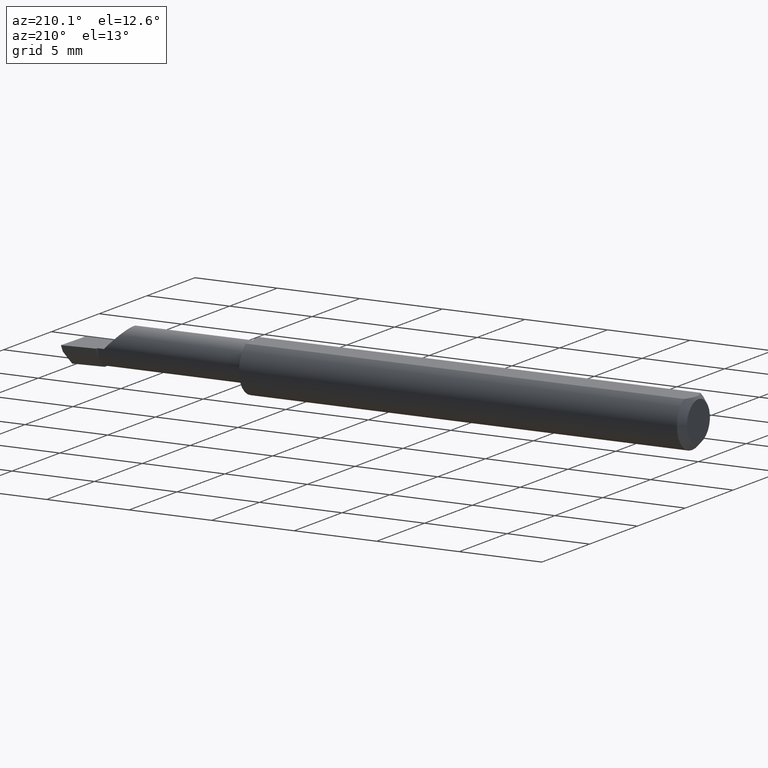
[diagram: clean part render]
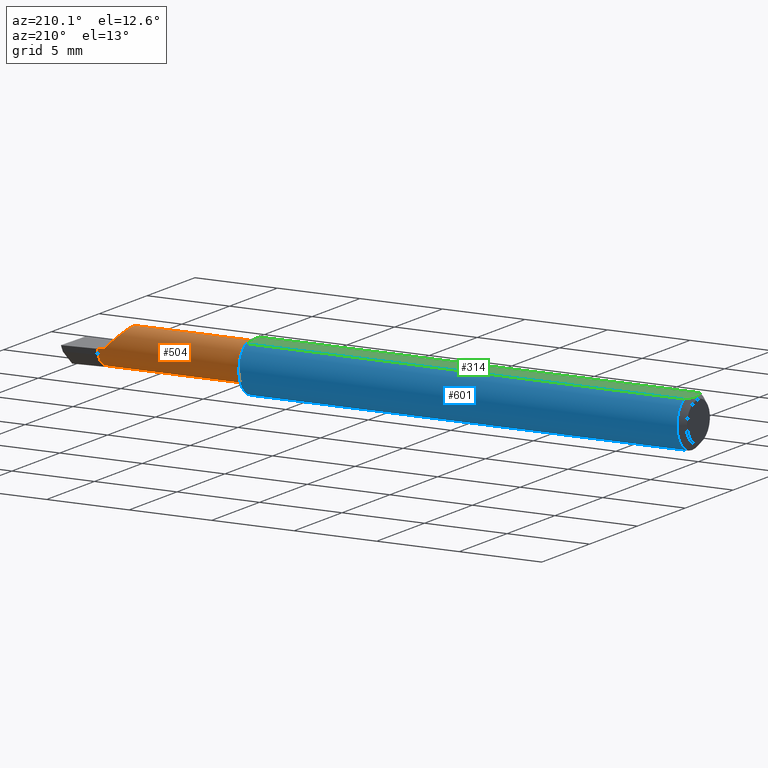
[diagram: same view with three faces highlighted in distinct colors, each labeled with its STEP entity id]
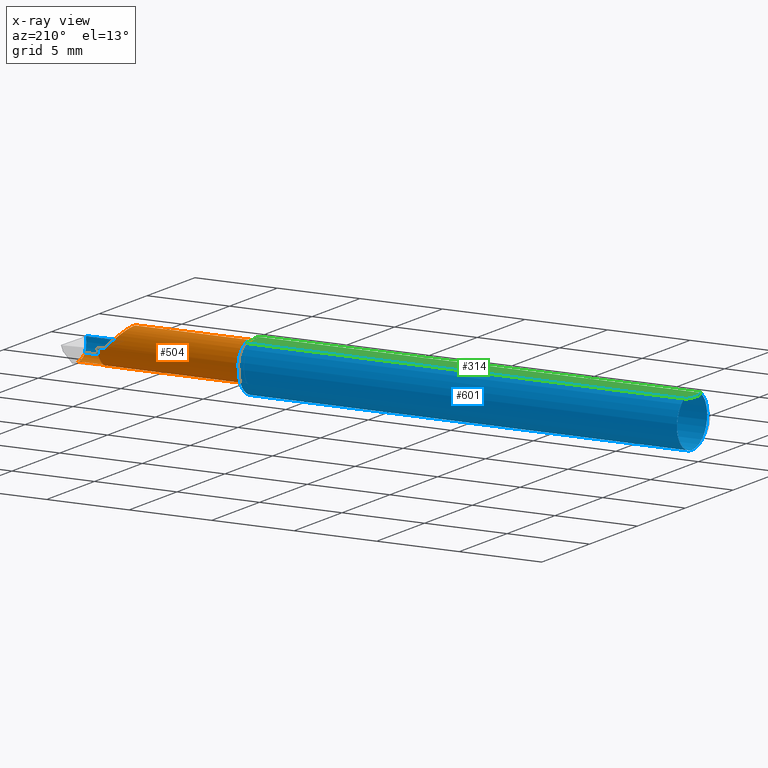
[diagram: x-ray of the same camera — body ghosted, the three highlighted faces saturated]
A machine part, auxiliary view with three faces highlighted in distinct colors.
The next image is the same camera in x-ray (body ghosted, the three faces saturated) — at least one of them is partly hidden behind the body in this view.
Their STEP definitions:

[orange] entity #504 — the highlighted cylindrical surface (edge-blend (fillet) strip) has radius 1.1443 mm, axis along (-1, -0, -0).
#4 = CARTESIAN_POINT ( 'NONE',  ( 1.492946566646605078, -0.02239999999999999630, -0.04504999999999998589 ) ) ;
#9 = ORIENTED_EDGE ( 'NONE', *, *, #261, .F. ) ;
#11 = VERTEX_POINT ( 'NONE', #4 ) ;
#13 =( BOUNDED_CURVE ( )  B_SPLINE_CURVE ( 3, ( #307, #83, #355, #220 ),
 .UNSPECIFIED., .F., .T. ) 
 B_SPLINE_CURVE_WITH_KNOTS ( ( 4, 4 ),
 ( 5.756326750816668003, 6.493234751459600496 ),
 .UNSPECIFIED. ) 
 CURVE ( )  GEOMETRIC_REPRESENTATION_ITEM ( )  RATIONAL_B_SPLINE_CURVE ( ( 1.000000000000000000, 0.9552568590268901705, 0.9552568590268901705, 1.000000000000000000 ) ) 
 REPRESENTATION_ITEM ( '' )  );
#15 = DIRECTION ( 'NONE',  ( -1.000000000000000000, -5.691349986800549142E-18, -0.0000000000000000000 ) ) ;
#17 = DIRECTION ( 'NONE',  ( 0.0000000000000000000, -1.000000000000000000, 0.0000000000000000000 ) ) ;
#24 = CARTESIAN_POINT ( 'NONE',  ( 1.420000000000000151, -0.02239999999999999630, 0.0000000000000000000 ) ) ;
#26 = CARTESIAN_POINT ( 'NONE',  ( 1.085000000000000187, -0.02239999999999999977, 0.0000000000000000000 ) ) ;
#39 = CARTESIAN_POINT ( 'NONE',  ( 1.420000000000000151, 0.02265000000000000346, 1.836970198721031660E-16 ) ) ;
#83 = CARTESIAN_POINT ( 'NONE',  ( 1.492874371667014088, -0.04428776192107811843, -0.04097143695815294584 ) ) ;
#96 = DIRECTION ( 'NONE',  ( -1.000000000000000000, -5.691349986800549142E-18, -0.0000000000000000000 ) ) ;
#104 = AXIS2_PLACEMENT_3D ( 'NONE', #512, #96, #279 ) ;
#108 = EDGE_CURVE ( 'NONE', #353, #258, #127, .T. ) ;
#116 = CARTESIAN_POINT ( 'NONE',  ( 1.420000000000000151, -0.02239999999999999630, -0.04504999999999998589 ) ) ;
#117 = CARTESIAN_POINT ( 'NONE',  ( 1.500000000000000222, -0.02239999999999999630, -0.04504999999999998589 ) ) ;
#126 = CARTESIAN_POINT ( 'NONE',  ( 1.405000000000000249, 0.02264999999999992714, 1.163414459189985436E-17 ) ) ;
#127 =( BOUNDED_CURVE ( )  B_SPLINE_CURVE ( 3, ( #563, #283, #147, #323 ),
 .UNSPECIFIED., .F., .T. ) 
 B_SPLINE_CURVE_WITH_KNOTS ( ( 4, 4 ),
 ( 5.546277306536651963, 7.853981633974482790 ),
 .UNSPECIFIED. ) 
 CURVE ( )  GEOMETRIC_REPRESENTATION_ITEM ( )  RATIONAL_B_SPLINE_CURVE ( ( 1.000000000000000000, 0.6033122017619988453, 0.6033122017619988453, 1.000000000000000000 ) ) 
 REPRESENTATION_ITEM ( '' )  );
#132 = VECTOR ( 'NONE', #166, 39.37007874015748143 ) ;
#147 = CARTESIAN_POINT ( 'NONE',  ( 1.359483931624303699, 0.02264999999999997571, 0.04551606837569584230 ) ) ;
#151 = EDGE_CURVE ( 'NONE', #11, #234, #221, .T. ) ;
#165 = DIRECTION ( 'NONE',  ( 0.0000000000000000000, -1.000000000000000000, 0.0000000000000000000 ) ) ;
#166 = DIRECTION ( 'NONE',  ( 1.000000000000000000, 5.691349986800549142E-18, 0.0000000000000000000 ) ) ;
#172 = ORIENTED_EDGE ( 'NONE', *, *, #299, .T. ) ;
#182 = CARTESIAN_POINT ( 'NONE',  ( 1.085000000000000187, -0.05267366071428583596, 0.03336177403790603624 ) ) ;
#203 = CIRCLE ( 'NONE', #456, 0.04504999999999995813 ) ;
#207 = AXIS2_PLACEMENT_3D ( 'NONE', #298, #253, #587 ) ;
#210 = ORIENTED_EDGE ( 'NONE', *, *, #242, .F. ) ;
#215 = LINE ( 'NONE', #597, #359 ) ;
#220 = CARTESIAN_POINT ( 'NONE',  ( 1.492946566646605078, -0.02239999999999999630, -0.04504999999999998589 ) ) ;
#221 = LINE ( 'NONE', #117, #410 ) ;
#225 = CYLINDRICAL_SURFACE ( 'NONE', #104, 0.04504999999999997201 ) ;
#227 = EDGE_CURVE ( 'NONE', #455, #234, #420, .T. ) ;
#229 = DIRECTION ( 'NONE',  ( 1.000000000000000000, 5.691349986800549142E-18, 0.0000000000000000000 ) ) ;
#234 = VERTEX_POINT ( 'NONE', #116 ) ;
#238 = EDGE_CURVE ( 'NONE', #437, #367, #366, .T. ) ;
#240 = ORIENTED_EDGE ( 'NONE', *, *, #306, .T. ) ;
#242 = EDGE_CURVE ( 'NONE', #455, #551, #572, .T. ) ;
#245 = CARTESIAN_POINT ( 'NONE',  ( 1.252500000000000169, -0.05267366071428577351, -0.03336177403790612644 ) ) ;
#249 = ORIENTED_EDGE ( 'NONE', *, *, #459, .T. ) ;
#253 = DIRECTION ( 'NONE',  ( 1.000000000000000000, 5.691349986800549142E-18, 0.0000000000000000000 ) ) ;
#254 = AXIS2_PLACEMENT_3D ( 'NONE', #24, #262, #165 ) ;
#258 = VERTEX_POINT ( 'NONE', #126 ) ;
#261 = EDGE_CURVE ( 'NONE', #462, #367, #203, .T. ) ;
#262 = DIRECTION ( 'NONE',  ( -1.000000000000000000, -5.691349986800549142E-18, -0.0000000000000000000 ) ) ;
#278 = ORIENTED_EDGE ( 'NONE', *, *, #108, .T. ) ;
#279 = DIRECTION ( 'NONE',  ( 5.691349986800549913E-18, -1.000000000000000000, 0.0000000000000000000 ) ) ;
#283 = CARTESIAN_POINT ( 'NONE',  ( 1.341051366671215384, -0.01896673977657555368, 0.06394863332878404638 ) ) ;
#298 = CARTESIAN_POINT ( 'NONE',  ( 1.420000000000000151, -0.02239999999999999630, 0.0000000000000000000 ) ) ;
#299 = EDGE_CURVE ( 'NONE', #511, #551, #319, .T. ) ;
#306 = EDGE_CURVE ( 'NONE', #258, #511, #446, .T. ) ;
#307 = CARTESIAN_POINT ( 'NONE',  ( 1.493589448587071988, -0.05267366071428577351, -0.03336177403790612644 ) ) ;
#319 = CIRCLE ( 'NONE', #254, 0.04504999999999999283 ) ;
#323 = CARTESIAN_POINT ( 'NONE',  ( 1.405000000000000249, 0.02264999999999992714, 1.163414459189985436E-17 ) ) ;
#334 = ORIENTED_EDGE ( 'NONE', *, *, #227, .T. ) ;
#344 = CARTESIAN_POINT ( 'NONE',  ( 1.371638225962093838, -0.05267366071428578739, 0.03336177403790611951 ) ) ;
#353 = VERTEX_POINT ( 'NONE', #344 ) ;
#354 = ORIENTED_EDGE ( 'NONE', *, *, #238, .T. ) ;
#355 = CARTESIAN_POINT ( 'NONE',  ( 1.492650040401417133, -0.03372388044486963193, -0.04504999999999997201 ) ) ;
#359 = VECTOR ( 'NONE', #229, 39.37007874015748143 ) ;
#361 = CARTESIAN_POINT ( 'NONE',  ( 1.420000000000000151, 0.01811171944543692874, -0.01970540757188761136 ) ) ;
#366 = LINE ( 'NONE', #245, #429 ) ;
#367 = VERTEX_POINT ( 'NONE', #397 ) ;
#389 = DIRECTION ( 'NONE',  ( -1.000000000000000000, -5.691349986800549142E-18, -0.0000000000000000000 ) ) ;
#392 = CARTESIAN_POINT ( 'NONE',  ( -2.563953169053420290E-19, 0.02264999999999996183, 1.836970198721030427E-16 ) ) ;
#396 = EDGE_CURVE ( 'NONE', #437, #11, #13, .T. ) ;
#397 = CARTESIAN_POINT ( 'NONE',  ( 1.085000000000000187, -0.05267366071428582208, -0.03336177403790606399 ) ) ;
#410 = VECTOR ( 'NONE', #525, 39.37007874015748143 ) ;
#413 = ORIENTED_EDGE ( 'NONE', *, *, #396, .F. ) ;
#420 = CIRCLE ( 'NONE', #428, 0.04504999999999999283 ) ;
#427 = FACE_OUTER_BOUND ( 'NONE', #447, .T. ) ;
#428 = AXIS2_PLACEMENT_3D ( 'NONE', #534, #577, #17 ) ;
#429 = VECTOR ( 'NONE', #15, 39.37007874015748143 ) ;
#437 = VERTEX_POINT ( 'NONE', #552 ) ;
#441 = DIRECTION ( 'NONE',  ( 0.0000000000000000000, -1.000000000000000000, 0.0000000000000000000 ) ) ;
#443 = ORIENTED_EDGE ( 'NONE', *, *, #151, .F. ) ;
#446 = LINE ( 'NONE', #392, #132 ) ;
#447 = EDGE_LOOP ( 'NONE', ( #413, #354, #9, #249, #278, #240, #172, #210, #334, #443 ) ) ;
#455 = VERTEX_POINT ( 'NONE', #554 ) ;
#456 = AXIS2_PLACEMENT_3D ( 'NONE', #26, #389, #441 ) ;
#459 = EDGE_CURVE ( 'NONE', #462, #353, #215, .T. ) ;
#462 = VERTEX_POINT ( 'NONE', #182 ) ;
#504 = ADVANCED_FACE ( 'NONE', ( #427 ), #225, .T. ) ;
#511 = VERTEX_POINT ( 'NONE', #39 ) ;
#512 = CARTESIAN_POINT ( 'NONE',  ( 0.0000000000000000000, -0.02240000000000000324, 0.0000000000000000000 ) ) ;
#525 = DIRECTION ( 'NONE',  ( -1.000000000000000000, 5.691349986800548372E-18, -0.0000000000000000000 ) ) ;
#534 = CARTESIAN_POINT ( 'NONE',  ( 1.420000000000000151, -0.02239999999999999630, 0.0000000000000000000 ) ) ;
#551 = VERTEX_POINT ( 'NONE', #361 ) ;
#552 = CARTESIAN_POINT ( 'NONE',  ( 1.493589448587071988, -0.05267366071428577351, -0.03336177403790612644 ) ) ;
#554 = CARTESIAN_POINT ( 'NONE',  ( 1.420000000000000151, -0.001476535193823069530, -0.03989625446711349277 ) ) ;
#563 = CARTESIAN_POINT ( 'NONE',  ( 1.371638225962093838, -0.05267366071428578739, 0.03336177403790611951 ) ) ;
#572 = CIRCLE ( 'NONE', #207, 0.04504999999999997201 ) ;
#577 = DIRECTION ( 'NONE',  ( -1.000000000000000000, -5.691349986800549142E-18, -0.0000000000000000000 ) ) ;
#587 = DIRECTION ( 'NONE',  ( 0.0000000000000000000, -1.000000000000000000, 1.776356839400250465E-15 ) ) ;
#597 = CARTESIAN_POINT ( 'NONE',  ( 1.252500000000000169, -0.05267366071428577351, 0.03336177403790612644 ) ) ;

[blue] entity #601 — the highlighted cylindrical surface (edge-blend (fillet) strip) has radius 1.5837 mm, axis along (-1, -0, -0).
#3 = CARTESIAN_POINT ( 'NONE',  ( 1.060000000000000275, 0.01155624999999986177, -0.06126969549408177451 ) ) ;
#6 = CARTESIAN_POINT ( 'NONE',  ( 1.083240954672475720, -0.05267366071428582208, -0.03336177403790606399 ) ) ;
#14 = ORIENTED_EDGE ( 'NONE', *, *, #493, .F. ) ;
#15 = DIRECTION ( 'NONE',  ( -1.000000000000000000, -5.691349986800549142E-18, -0.0000000000000000000 ) ) ;
#23 = CARTESIAN_POINT ( 'NONE',  ( 1.060000000000000275, 0.0000000000000000000, 0.0000000000000000000 ) ) ;
#25 = EDGE_CURVE ( 'NONE', #367, #113, #505, .T. ) ;
#27 = VECTOR ( 'NONE', #481, 39.37007874015748143 ) ;
#34 = B_SPLINE_CURVE_WITH_KNOTS ( 'NONE', 3,
 ( #529, #162, #475, #378, #533, #107, #528, #62, #425, #373 ),
 .UNSPECIFIED., .F., .F.,
 ( 4, 2, 2, 2, 4 ),
 ( 3.797231421916798275E-07, 0.0004333373953855909145, 0.0006498162315072879497, 0.0007580556495681328895, 0.0008662950676289779377 ),
 .UNSPECIFIED. ) ;
#37 = DIRECTION ( 'NONE',  ( -1.000000000000000000, -0.0000000000000000000, -0.0000000000000000000 ) ) ;
#41 = CARTESIAN_POINT ( 'NONE',  ( 1.497433779686218935, -0.06235000000000005121, 3.231995301756471648E-19 ) ) ;
#45 = VERTEX_POINT ( 'NONE', #55 ) ;
#55 = CARTESIAN_POINT ( 'NONE',  ( 0.01500000000000000465, 0.0000000000000000000, -0.06235000000000000264 ) ) ;
#56 = CARTESIAN_POINT ( 'NONE',  ( 1.072612635401776870, -0.04600867268841651869, -0.04219264322731248323 ) ) ;
#62 = CARTESIAN_POINT ( 'NONE',  ( 1.082134555967766865, -0.05240678568573016449, 0.03378794548805856557 ) ) ;
#69 = CARTESIAN_POINT ( 'NONE',  ( 2.249639673992788601E-32, -0.06234999999999999570, 1.836970198721030427E-16 ) ) ;
#79 = ORIENTED_EDGE ( 'NONE', *, *, #398, .T. ) ;
#80 = AXIS2_PLACEMENT_3D ( 'NONE', #23, #197, #430 ) ;
#87 = DIRECTION ( 'NONE',  ( 0.0000000000000000000, 0.0000000000000000000, 1.000000000000000000 ) ) ;
#88 = CIRCLE ( 'NONE', #383, 0.06235000000000000264 ) ;
#106 = CARTESIAN_POINT ( 'NONE',  ( 1.068132745576696019, -0.03943215935316551901, -0.04868886658133501216 ) ) ;
#107 = CARTESIAN_POINT ( 'NONE',  ( 1.078587721903973895, -0.05102224570557683386, 0.03585204334870999848 ) ) ;
#111 = LINE ( 'NONE', #293, #352 ) ;
#113 = VERTEX_POINT ( 'NONE', #3 ) ;
#144 = ORIENTED_EDGE ( 'NONE', *, *, #496, .F. ) ;
#154 = CARTESIAN_POINT ( 'NONE',  ( 1.405000000000000249, -0.06235000000000005121, 1.163414459189985436E-17 ) ) ;
#161 = ORIENTED_EDGE ( 'NONE', *, *, #25, .F. ) ;
#162 = CARTESIAN_POINT ( 'NONE',  ( 1.067873522747514015, -0.03849383661596392919, 0.04935695859860204232 ) ) ;
#169 = VECTOR ( 'NONE', #308, 39.37007874015748143 ) ;
#177 = EDGE_CURVE ( 'NONE', #437, #477, #390, .T. ) ;
#182 = CARTESIAN_POINT ( 'NONE',  ( 1.085000000000000187, -0.05267366071428583596, 0.03336177403790603624 ) ) ;
#189 = CARTESIAN_POINT ( 'NONE',  ( 1.059999999999996056, 0.004792881695547039807, -0.06254535345742004426 ) ) ;
#197 = DIRECTION ( 'NONE',  ( 1.000000000000000000, 5.691349986800549142E-18, 0.0000000000000000000 ) ) ;
#198 = CARTESIAN_POINT ( 'NONE',  ( 1.081592203943254615, -0.05228879390856558396, -0.03397671269166894353 ) ) ;
#199 = EDGE_CURVE ( 'NONE', #386, #462, #34, .T. ) ;
#202 = FACE_OUTER_BOUND ( 'NONE', #565, .T. ) ;
#206 = CARTESIAN_POINT ( 'NONE',  ( 1.393107270290912858, -0.06235000000000000264, 0.01189272970908752079 ) ) ;
#211 = VERTEX_POINT ( 'NONE', #578 ) ;
#212 = EDGE_CURVE ( 'NONE', #211, #353, #435, .T. ) ;
#213 = EDGE_CURVE ( 'NONE', #113, #311, #315, .T. ) ;
#215 = LINE ( 'NONE', #597, #359 ) ;
#222 = ORIENTED_EDGE ( 'NONE', *, *, #213, .F. ) ;
#229 = DIRECTION ( 'NONE',  ( 1.000000000000000000, 5.691349986800549142E-18, 0.0000000000000000000 ) ) ;
#235 = DIRECTION ( 'NONE',  ( -1.000000000000000000, -0.0000000000000000000, -0.0000000000000000000 ) ) ;
#238 = EDGE_CURVE ( 'NONE', #437, #367, #366, .T. ) ;
#241 = CARTESIAN_POINT ( 'NONE',  ( 1.494656860756163885, -0.05903713403021957490, -0.02331472336167223977 ) ) ;
#245 = CARTESIAN_POINT ( 'NONE',  ( 1.252500000000000169, -0.05267366071428577351, -0.03336177403790612644 ) ) ;
#246 = EDGE_CURVE ( 'NONE', #386, #438, #111, .T. ) ;
#251 = DIRECTION ( 'NONE',  ( -1.000000000000000000, -0.0000000000000000000, -0.0000000000000000000 ) ) ;
#274 = CIRCLE ( 'NONE', #320, 0.06235000000000000264 ) ;
#293 = CARTESIAN_POINT ( 'NONE',  ( 0.0000000000000000000, -0.03386738844375222768, 0.05234999999999997988 ) ) ;
#294 = CARTESIAN_POINT ( 'NONE',  ( 1.060000000000000275, 0.03386738844375224156, 0.05235000000000000070 ) ) ;
#308 = DIRECTION ( 'NONE',  ( 1.000000000000000000, 0.0000000000000000000, 0.0000000000000000000 ) ) ;
#310 = ORIENTED_EDGE ( 'NONE', *, *, #238, .F. ) ;
#311 = VERTEX_POINT ( 'NONE', #294 ) ;
#313 = CARTESIAN_POINT ( 'NONE',  ( 0.01500000000000000465, 0.0000000000000000000, 0.0000000000000000000 ) ) ;
#315 = CIRCLE ( 'NONE', #80, 0.06235000000000000264 ) ;
#320 = AXIS2_PLACEMENT_3D ( 'NONE', #358, #507, #364 ) ;
#326 = CARTESIAN_POINT ( 'NONE',  ( 1.078775713346482146, -0.05116520334387903574, -0.03564627526859109191 ) ) ;
#335 = CARTESIAN_POINT ( 'NONE',  ( 1.493589448587071988, -0.05267366071428577351, -0.03336177403790612644 ) ) ;
#336 = CARTESIAN_POINT ( 'NONE',  ( 1.497433779686218935, -0.06235000000000005121, 3.231995301756471648E-19 ) ) ;
#337 = EDGE_CURVE ( 'NONE', #477, #211, #472, .T. ) ;
#344 = CARTESIAN_POINT ( 'NONE',  ( 1.371638225962093838, -0.05267366071428578739, 0.03336177403790611951 ) ) ;
#350 = LINE ( 'NONE', #595, #169 ) ;
#351 = CARTESIAN_POINT ( 'NONE',  ( 1.066182189689074633, -0.03386738844375222074, 0.05235000000000000070 ) ) ;
#352 = VECTOR ( 'NONE', #251, 39.37007874015748143 ) ;
#353 = VERTEX_POINT ( 'NONE', #344 ) ;
#358 = CARTESIAN_POINT ( 'NONE',  ( 0.01500000000000000465, 0.0000000000000000000, 0.0000000000000000000 ) ) ;
#359 = VECTOR ( 'NONE', #229, 39.37007874015748143 ) ;
#362 = VERTEX_POINT ( 'NONE', #395 ) ;
#364 = DIRECTION ( 'NONE',  ( 0.0000000000000000000, 0.0000000000000000000, 1.000000000000000000 ) ) ;
#366 = LINE ( 'NONE', #245, #429 ) ;
#367 = VERTEX_POINT ( 'NONE', #397 ) ;
#373 = CARTESIAN_POINT ( 'NONE',  ( 1.085000000000000187, -0.05267366071428583596, 0.03336177403790603624 ) ) ;
#374 = CARTESIAN_POINT ( 'NONE',  ( 1.077568494155622725, -0.05043275970182654888, -0.03668598949093540562 ) ) ;
#377 = CARTESIAN_POINT ( 'NONE',  ( 1.371638225962093838, -0.05267366071428578739, 0.03336177403790611951 ) ) ;
#378 = CARTESIAN_POINT ( 'NONE',  ( 1.074073837407041987, -0.04761084945882111674, 0.04033650601908232020 ) ) ;
#383 = AXIS2_PLACEMENT_3D ( 'NONE', #313, #37, #87 ) ;
#386 = VERTEX_POINT ( 'NONE', #351 ) ;
#390 =( BOUNDED_CURVE ( )  B_SPLINE_CURVE ( 3, ( #335, #241, #574, #336 ),
 .UNSPECIFIED., .F., .F. ) 
 B_SPLINE_CURVE_WITH_KNOTS ( ( 4, 4 ),
 ( 0.7961532496683315641, 1.360746882514881850 ),
 .UNSPECIFIED. ) 
 CURVE ( )  GEOMETRIC_REPRESENTATION_ITEM ( )  RATIONAL_B_SPLINE_CURVE ( ( 1.000000000000000000, 0.9736121104788257874, 0.9736121104788257874, 1.000000000000000000 ) ) 
 REPRESENTATION_ITEM ( '' )  );
#395 = CARTESIAN_POINT ( 'NONE',  ( 0.01500000000000000465, 0.03386738844375223462, 0.05234999999999997988 ) ) ;
#397 = CARTESIAN_POINT ( 'NONE',  ( 1.085000000000000187, -0.05267366071428582208, -0.03336177403790606399 ) ) ;
#398 = EDGE_CURVE ( 'NONE', #362, #311, #350, .T. ) ;
#407 = CARTESIAN_POINT ( 'NONE',  ( 0.01500000000000185039, -0.03386738844380016850, 0.05235000000000000070 ) ) ;
#417 = CARTESIAN_POINT ( 'NONE',  ( 1.060000000000000275, 0.01155624999999986177, -0.06126969549408177451 ) ) ;
#423 = CARTESIAN_POINT ( 'NONE',  ( 1.065988988117221536, -0.03406974560157229048, -0.05264335079965579145 ) ) ;
#425 = CARTESIAN_POINT ( 'NONE',  ( 1.083537604150741629, -0.05267366071513952114, 0.03336177403655851692 ) ) ;
#429 = VECTOR ( 'NONE', #15, 39.37007874015748143 ) ;
#430 = DIRECTION ( 'NONE',  ( 0.0000000000000000000, 1.000000000000000000, 0.0000000000000000000 ) ) ;
#435 =( BOUNDED_CURVE ( )  B_SPLINE_CURVE ( 3, ( #154, #206, #579, #377 ),
 .UNSPECIFIED., .F., .T. ) 
 B_SPLINE_CURVE_WITH_KNOTS ( ( 4, 4 ),
 ( 4.712388980384689674, 5.276982613231239405 ),
 .UNSPECIFIED. ) 
 CURVE ( )  GEOMETRIC_REPRESENTATION_ITEM ( )  RATIONAL_B_SPLINE_CURVE ( ( 1.000000000000000000, 0.9736121104788257874, 0.9736121104788257874, 1.000000000000000000 ) ) 
 REPRESENTATION_ITEM ( '' )  );
#437 = VERTEX_POINT ( 'NONE', #552 ) ;
#438 = VERTEX_POINT ( 'NONE', #407 ) ;
#458 = CARTESIAN_POINT ( 'NONE',  ( 1.061648092746324767, -0.01564147840104310530, -0.06074236086770339743 ) ) ;
#459 = EDGE_CURVE ( 'NONE', #462, #353, #215, .T. ) ;
#462 = VERTEX_POINT ( 'NONE', #182 ) ;
#463 = CARTESIAN_POINT ( 'NONE',  ( 1.060276440363477235, -0.002103274276245940214, -0.06268864719924564788 ) ) ;
#467 = CARTESIAN_POINT ( 'NONE',  ( 0.0000000000000000000, 0.0000000000000000000, 0.0000000000000000000 ) ) ;
#469 = CARTESIAN_POINT ( 'NONE',  ( 1.062728993423048385, -0.02215482600002538494, -0.05866202889160988809 ) ) ;
#472 = LINE ( 'NONE', #69, #27 ) ;
#473 = CARTESIAN_POINT ( 'NONE',  ( 1.074327038483182450, -0.04799382633214958893, -0.03989142061000427314 ) ) ;
#475 = CARTESIAN_POINT ( 'NONE',  ( 1.069899083742320345, -0.04251446938472881742, 0.04588310374207918430 ) ) ;
#477 = VERTEX_POINT ( 'NONE', #41 ) ;
#481 = DIRECTION ( 'NONE',  ( -1.000000000000000000, -0.0000000000000000000, -0.0000000000000000000 ) ) ;
#482 = CYLINDRICAL_SURFACE ( 'NONE', #573, 0.06235000000000000264 ) ;
#493 = EDGE_CURVE ( 'NONE', #45, #438, #274, .T. ) ;
#496 = EDGE_CURVE ( 'NONE', #362, #45, #88, .T. ) ;
#502 = ORIENTED_EDGE ( 'NONE', *, *, #212, .T. ) ;
#505 = B_SPLINE_CURVE_WITH_KNOTS ( 'NONE', 3,
 ( #519, #6, #198, #326, #374, #473, #56, #106, #423, #469, #458, #463, #189, #417 ),
 .UNSPECIFIED., .F., .F.,
 ( 4, 2, 2, 2, 2, 2, 4 ),
 ( 1.960001601931791046E-07, 0.0001315703184465652758, 0.0002629446367329374076, 0.0005256932733056817256, 0.001051190546451170795, 0.001576687819596659648, 0.002102185092742148934 ),
 .UNSPECIFIED. ) ;
#507 = DIRECTION ( 'NONE',  ( -1.000000000000000000, -0.0000000000000000000, -0.0000000000000000000 ) ) ;
#519 = CARTESIAN_POINT ( 'NONE',  ( 1.085000000000000187, -0.05267366071428582208, -0.03336177403790606399 ) ) ;
#522 = ORIENTED_EDGE ( 'NONE', *, *, #337, .T. ) ;
#524 = ORIENTED_EDGE ( 'NONE', *, *, #199, .F. ) ;
#528 = CARTESIAN_POINT ( 'NONE',  ( 1.079654899318486461, -0.05157034440792586383, 0.03505133412385297992 ) ) ;
#529 = CARTESIAN_POINT ( 'NONE',  ( 1.066182189689074633, -0.03386738844375222074, 0.05235000000000000070 ) ) ;
#533 = CARTESIAN_POINT ( 'NONE',  ( 1.075661082963681459, -0.04915643512136035759, 0.03841395140597855112 ) ) ;
#539 = ORIENTED_EDGE ( 'NONE', *, *, #177, .T. ) ;
#540 = ORIENTED_EDGE ( 'NONE', *, *, #459, .F. ) ;
#552 = CARTESIAN_POINT ( 'NONE',  ( 1.493589448587071988, -0.05267366071428577351, -0.03336177403790612644 ) ) ;
#562 = DIRECTION ( 'NONE',  ( 0.0000000000000000000, 0.0000000000000000000, 1.000000000000000000 ) ) ;
#565 = EDGE_LOOP ( 'NONE', ( #310, #539, #522, #502, #540, #524, #594, #14, #144, #79, #222, #161 ) ) ;
#573 = AXIS2_PLACEMENT_3D ( 'NONE', #467, #235, #562 ) ;
#574 = CARTESIAN_POINT ( 'NONE',  ( 1.495973035530413275, -0.06234999999999998183, -0.01189272970908758151 ) ) ;
#578 = CARTESIAN_POINT ( 'NONE',  ( 1.405000000000000249, -0.06235000000000005121, 1.163414459189985436E-17 ) ) ;
#579 = CARTESIAN_POINT ( 'NONE',  ( 1.381685276638327631, -0.05903713403021959572, 0.02331472336167217385 ) ) ;
#594 = ORIENTED_EDGE ( 'NONE', *, *, #246, .T. ) ;
#595 = CARTESIAN_POINT ( 'NONE',  ( 0.0000000000000000000, 0.03386738844375223462, 0.05234999999999997988 ) ) ;
#597 = CARTESIAN_POINT ( 'NONE',  ( 1.252500000000000169, -0.05267366071428577351, 0.03336177403790612644 ) ) ;
#601 = ADVANCED_FACE ( 'NONE', ( #202 ), #482, .T. ) ;

[green] entity #314 — the highlighted planar face has unit normal (0, -0, -1).
#8 = CARTESIAN_POINT ( 'NONE',  ( 0.006057557792978140489, -0.01187252718384441616, 0.05234999999999998682 ) ) ;
#28 = DIRECTION ( 'NONE',  ( 5.691349986800549142E-18, -1.000000000000000000, 7.598598113218357399E-17 ) ) ;
#46 = CARTESIAN_POINT ( 'NONE',  ( 1.060684336333183486, 0.01400540109987310697, 0.05234999999999998682 ) ) ;
#52 = FACE_OUTER_BOUND ( 'NONE', #324, .T. ) ;
#54 = ORIENTED_EDGE ( 'NONE', *, *, #434, .F. ) ;
#68 = ORIENTED_EDGE ( 'NONE', *, *, #348, .F. ) ;
#92 = CARTESIAN_POINT ( 'NONE',  ( 1.067029704074272445, -0.01497150789875727889, 0.05235000000000000764 ) ) ;
#105 = CARTESIAN_POINT ( 'NONE',  ( 0.004999999999989931769, 7.898418181085889318E-16, 0.05235000000000000070 ) ) ;
#110 = CARTESIAN_POINT ( 'NONE',  ( 0.009669996313769784607, 0.02323004575534281385, 0.05234999999999998682 ) ) ;
#111 = LINE ( 'NONE', #293, #352 ) ;
#124 = CARTESIAN_POINT ( 'NONE',  ( 1.060000000000000275, 0.1123499999999999915, 0.05234999999999998682 ) ) ;
#125 = EDGE_CURVE ( 'NONE', #438, #422, #265, .T. ) ;
#138 = CARTESIAN_POINT ( 'NONE',  ( 1.063640393495457026, 0.0002918085034138360166, 0.05234999999999998682 ) ) ;
#148 = B_SPLINE_CURVE_WITH_KNOTS ( 'NONE', 3,
 ( #270, #503, #46, #186, #181, #138, #180, #600, #228, #560, #92, #501, #605, #272 ),
 .UNSPECIFIED., .F., .F.,
 ( 4, 2, 2, 2, 2, 2, 4 ),
 ( 0.008234143088603514474, 0.008591734916881392167, 0.008770530831020331014, 0.008859928788089797835, 0.008949326745159266391, 0.009306918573437142350, 0.009664510401715018309 ),
 .UNSPECIFIED. ) ;
#153 = ORIENTED_EDGE ( 'NONE', *, *, #246, .F. ) ;
#168 = DIRECTION ( 'NONE',  ( 0.0000000000000000000, 1.000000000000000000, -7.598598113218357399E-17 ) ) ;
#169 = VECTOR ( 'NONE', #308, 39.37007874015748143 ) ;
#180 = CARTESIAN_POINT ( 'NONE',  ( 1.063943373083574784, -0.0009488278625737072997, 0.05234999999999998682 ) ) ;
#181 = CARTESIAN_POINT ( 'NONE',  ( 1.062747134522028736, 0.004017454403653804990, 0.05235000000000000764 ) ) ;
#186 = CARTESIAN_POINT ( 'NONE',  ( 1.062172826817815663, 0.006508548278878137014, 0.05235000000000000070 ) ) ;
#195 = ORIENTED_EDGE ( 'NONE', *, *, #398, .F. ) ;
#196 = CARTESIAN_POINT ( 'NONE',  ( 0.01500000000000185039, -0.03386738844380016850, 0.05235000000000000070 ) ) ;
#228 = CARTESIAN_POINT ( 'NONE',  ( 1.064818038875745554, -0.004579228880846305041, 0.05235000000000001458 ) ) ;
#236 = CARTESIAN_POINT ( 'NONE',  ( 0.01218518006020415795, 0.02868529347538067639, 0.05235000000000000070 ) ) ;
#239 = CARTESIAN_POINT ( 'NONE',  ( 0.01216137397042175820, -0.02864146636719541034, 0.05235000000000000070 ) ) ;
#246 = EDGE_CURVE ( 'NONE', #386, #438, #111, .T. ) ;
#251 = DIRECTION ( 'NONE',  ( -1.000000000000000000, -0.0000000000000000000, -0.0000000000000000000 ) ) ;
#265 = B_SPLINE_CURVE_WITH_KNOTS ( 'NONE', 3,
 ( #196, #239, #287, #8, #412, #329 ),
 .UNSPECIFIED., .F., .F.,
 ( 4, 2, 4 ),
 ( 0.002133667072902290657, 0.002585433046183636171, 0.003037199019464981685 ),
 .UNSPECIFIED. ) ;
#270 = CARTESIAN_POINT ( 'NONE',  ( 1.060000000000000275, 0.02414546164772667439, 0.05235000000000000070 ) ) ;
#272 = CARTESIAN_POINT ( 'NONE',  ( 1.066182189689074633, -0.03386738844375222074, 0.05235000000000000070 ) ) ;
#282 = CARTESIAN_POINT ( 'NONE',  ( 0.01500000000000000465, 0.03386738844375223462, 0.05234999999999997988 ) ) ;
#287 = CARTESIAN_POINT ( 'NONE',  ( 0.009678036133109307534, -0.02325481837211496039, 0.05235000000000000070 ) ) ;
#293 = CARTESIAN_POINT ( 'NONE',  ( 0.0000000000000000000, -0.03386738844375222768, 0.05234999999999997988 ) ) ;
#294 = CARTESIAN_POINT ( 'NONE',  ( 1.060000000000000275, 0.03386738844375224156, 0.05235000000000000070 ) ) ;
#296 = VERTEX_POINT ( 'NONE', #583 ) ;
#308 = DIRECTION ( 'NONE',  ( 1.000000000000000000, 0.0000000000000000000, 0.0000000000000000000 ) ) ;
#311 = VERTEX_POINT ( 'NONE', #294 ) ;
#314 = ADVANCED_FACE ( 'NONE', ( #52 ), #537, .F. ) ;
#324 = EDGE_LOOP ( 'NONE', ( #54, #68, #195, #494, #380, #153 ) ) ;
#329 = CARTESIAN_POINT ( 'NONE',  ( 0.004999999999989931769, 7.898418181085889318E-16, 0.05235000000000000070 ) ) ;
#348 = EDGE_CURVE ( 'NONE', #311, #296, #520, .T. ) ;
#349 = CARTESIAN_POINT ( 'NONE',  ( 0.004999999999989931769, 7.898418181085889318E-16, 0.05235000000000000070 ) ) ;
#350 = LINE ( 'NONE', #595, #169 ) ;
#351 = CARTESIAN_POINT ( 'NONE',  ( 1.066182189689074633, -0.03386738844375222074, 0.05235000000000000070 ) ) ;
#352 = VECTOR ( 'NONE', #251, 39.37007874015748143 ) ;
#362 = VERTEX_POINT ( 'NONE', #395 ) ;
#375 = CARTESIAN_POINT ( 'NONE',  ( 0.006064493299689842180, 0.01189382783781397189, 0.05235000000000000070 ) ) ;
#380 = ORIENTED_EDGE ( 'NONE', *, *, #125, .F. ) ;
#386 = VERTEX_POINT ( 'NONE', #351 ) ;
#395 = CARTESIAN_POINT ( 'NONE',  ( 0.01500000000000000465, 0.03386738844375223462, 0.05234999999999997988 ) ) ;
#398 = EDGE_CURVE ( 'NONE', #362, #311, #350, .T. ) ;
#399 = B_SPLINE_CURVE_WITH_KNOTS ( 'NONE', 3,
 ( #105, #517, #375, #110, #236, #282 ),
 .UNSPECIFIED., .F., .F.,
 ( 4, 2, 4 ),
 ( 0.003037199019464981685, 0.003488061124369676216, 0.003938923229274370746 ),
 .UNSPECIFIED. ) ;
#407 = CARTESIAN_POINT ( 'NONE',  ( 0.01500000000000185039, -0.03386738844380016850, 0.05235000000000000070 ) ) ;
#412 = CARTESIAN_POINT ( 'NONE',  ( 0.004999999999998879473, -0.005957634400466955450, 0.05235000000000000070 ) ) ;
#422 = VERTEX_POINT ( 'NONE', #349 ) ;
#434 = EDGE_CURVE ( 'NONE', #296, #386, #148, .T. ) ;
#438 = VERTEX_POINT ( 'NONE', #407 ) ;
#439 = CARTESIAN_POINT ( 'NONE',  ( 1.500000000000000222, 0.1123499999999999915, 0.05234999999999998682 ) ) ;
#448 = AXIS2_PLACEMENT_3D ( 'NONE', #439, #486, #168 ) ;
#486 = DIRECTION ( 'NONE',  ( 0.0000000000000000000, -7.598598113218357399E-17, -1.000000000000000000 ) ) ;
#494 = ORIENTED_EDGE ( 'NONE', *, *, #576, .F. ) ;
#501 = CARTESIAN_POINT ( 'NONE',  ( 1.067516889514667611, -0.02435447415594420989, 0.05235000000000000070 ) ) ;
#503 = CARTESIAN_POINT ( 'NONE',  ( 1.060000000000000275, 0.01903747135664268786, 0.05235000000000000070 ) ) ;
#517 = CARTESIAN_POINT ( 'NONE',  ( 0.004999999999999268051, 0.005945714695019511074, 0.05235000000000000070 ) ) ;
#520 = LINE ( 'NONE', #124, #603 ) ;
#537 = PLANE ( 'NONE',  #448 ) ;
#560 = CARTESIAN_POINT ( 'NONE',  ( 1.066144749454604801, -0.01034308142135323058, 0.05235000000000000764 ) ) ;
#576 = EDGE_CURVE ( 'NONE', #422, #362, #399, .T. ) ;
#583 = CARTESIAN_POINT ( 'NONE',  ( 1.060000000000000275, 0.02414546164772667439, 0.05235000000000000070 ) ) ;
#595 = CARTESIAN_POINT ( 'NONE',  ( 0.0000000000000000000, 0.03386738844375223462, 0.05234999999999997988 ) ) ;
#600 = CARTESIAN_POINT ( 'NONE',  ( 1.064543615195409521, -0.003431463083333101752, 0.05235000000000000764 ) ) ;
#603 = VECTOR ( 'NONE', #28, 39.37007874015748143 ) ;
#605 = CARTESIAN_POINT ( 'NONE',  ( 1.067065763150419899, -0.02914627190158987358, 0.05234999999999998682 ) ) ;